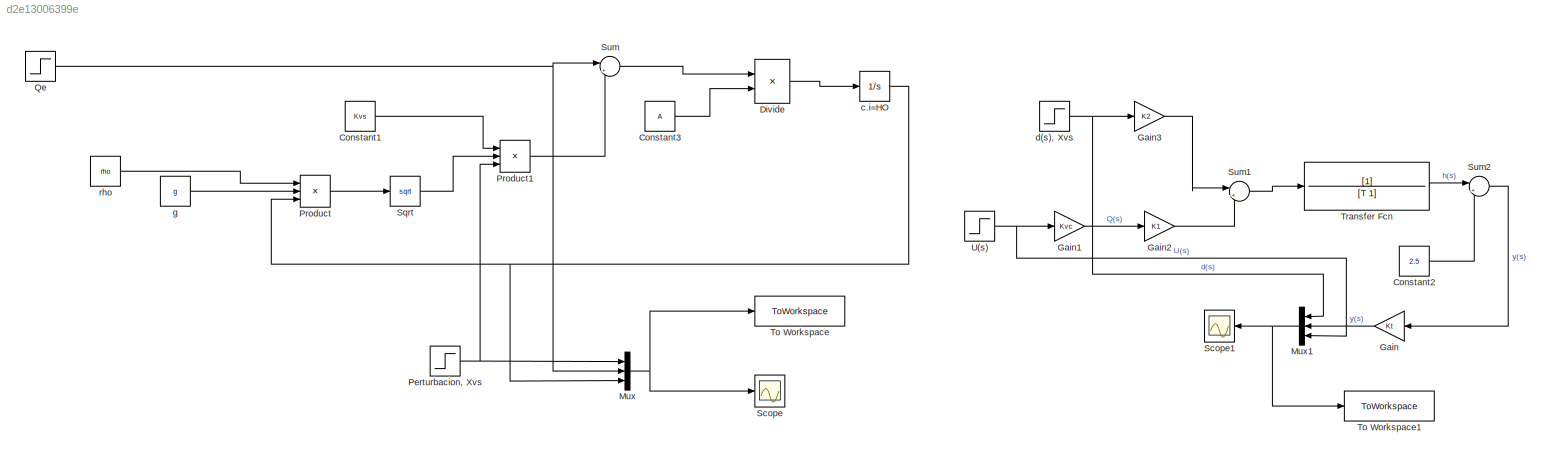
MODEL slx_d2e13006399e
KIND model
CONFIG AbsTol = auto
CONFIG EnableMultiTasking = off
CONFIG FixedStep = auto
CONFIG MaxStep = auto
CONFIG MinStep = auto
CONFIG RelTol = 1e-3
CONFIG SampleTimeConstraint = Unconstrained
CONFIG SolverName = VariableStepAuto
CONFIG StartTime = 0.0
CONFIG StopTime = 100
BLOCK [Constant] Constant1
  Value = Kvs
BLOCK [Constant] Constant2
  Value = 2.5
BLOCK [Constant] Constant3
  Value = A
BLOCK [Product] Divide
  Inputs = */
  Ports = [2, 1]
BLOCK [Gain] Gain
  Gain = Kt
BLOCK [Gain] Gain1
  Gain = Kvc
BLOCK [Gain] Gain2
  Gain = K1
BLOCK [Gain] Gain3
  Gain = K2
BLOCK [Mux] Mux
  DisplayOption = bar
  Inputs = 3
  Ports = [3, 1]
BLOCK [Mux] Mux1
  DisplayOption = bar
  Inputs = 3
  Ports = [3, 1]
BLOCK [Step] Perturbacion, Xvs
  After = 0.52
  Before = Xvs0
  SampleTime = 0
  Time = 10
BLOCK [Product] Product
  Inputs = 3
  Ports = [3, 1]
BLOCK [Product] Product1
  Inputs = 3
  Ports = [3, 1]
BLOCK [Step] Qe
  After = Qe-0.02
  Before = Qe
  SampleTime = 0
  Time = 0
BLOCK [Scope] Scope
  Floating = off
  NumInputPorts = 1
  Ports = [1]
  ScopeSpecificationString = Simulink.scopes.TimeScopeBlockCfg('CurrentConfiguration', extmgr.ConfigurationSet(extmgr.Configuration('Core','General UI',true),extmgr.Configuration('Core','Source UI',true),extmgr.Configuration('Sources','WiredSimulink',true,'SampleTime','1'),extmgr.Configuration('Visuals','Time Domain',true,'SerializedDisplays',{struct('MinYLimReal','-1.93483','MaxYLimReal','22.41351','YLabelReal','','MinYLimMa...<+1476ch>
BLOCK [Scope] Scope1
  Floating = off
  NumInputPorts = 1
  Ports = [1]
  ScopeSpecificationString = Simulink.scopes.TimeScopeBlockCfg('CurrentConfiguration', extmgr.ConfigurationSet(extmgr.Configuration('Core','General UI',true),extmgr.Configuration('Core','Source UI',true),extmgr.Configuration('Sources','WiredSimulink',true,'DataLoggingVariableName','ScopeData1'),extmgr.Configuration('Visuals','Time Domain',true,'SerializedDisplays',{struct('MinYLimReal','-25.58166','MaxYLimReal','235.23491','Y...<+1387ch>
BLOCK [Sqrt] Sqrt
BLOCK [Sum] Sum
  Inputs = |+-
  Ports = [2, 1]
BLOCK [Sum] Sum1
  Inputs = |++
  Ports = [2, 1]
BLOCK [Sum] Sum2
  Inputs = |++
  Ports = [2, 1]
BLOCK [ToWorkspace] To Workspace
  FixptAsFi = on
  MaxDataPoints = inf
  Ports = [1]
  SampleTime = -1
  SaveFormat = Timeseries
  VariableName = y0
BLOCK [ToWorkspace] To Workspace1
  FixptAsFi = on
  MaxDataPoints = inf
  Ports = [1]
  SampleTime = -1
  SaveFormat = Timeseries
  VariableName = y1
BLOCK [TransferFcn] Transfer Fcn
  Denominator = [T 1]
BLOCK [Step] U(s)
  After = Uf
  Before = U
  SampleTime = 0
BLOCK [Integrator] c.i=HO
  InitialCondition = 2.5
  Ports = [1, 1]
BLOCK [Step] d(s), Xvs
  Before = Xvs0
  SampleTime = 0
BLOCK [Constant] g
  Value = g
BLOCK [Constant] rho
  Value = rho
LINE Constant1:1 -> Product1:1
LINE Constant2:1 -> Sum2:2
LINE Constant3:1 -> Divide:2
LINE Divide:1 -> c.i=HO:1
LINE Gain1:1 -> Gain2:1
LINE Gain2:1 -> Sum1:2
LINE Gain3:1 -> Sum1:1
LINE Gain:1 -> Mux1:2
NET Mux1:1 -> Scope1:1, To Workspace1:1
NET Mux:1 -> Scope:1, To Workspace:1
NET Perturbacion, Xvs:1 -> Mux:1, Product1:3
LINE Product1:1 -> Sum:2
LINE Product:1 -> Sqrt:1
NET Qe:1 -> Mux:2, Sum:1
LINE Sqrt:1 -> Product1:2
LINE Sum1:1 -> Transfer Fcn:1
LINE Sum2:1 -> Gain:1
LINE Sum:1 -> Divide:1
LINE Transfer Fcn:1 -> Sum2:1
NET U(s):1 -> Gain1:1, Mux1:3
NET c.i=HO:1 -> Mux:3, Product:3
NET d(s), Xvs:1 -> Gain3:1, Mux1:1
LINE g:1 -> Product:2
LINE rho:1 -> Product:1
note: NET lines group one-source signal fan-out (src -> all destinations, sorted); 1:1 wires keep LINE
